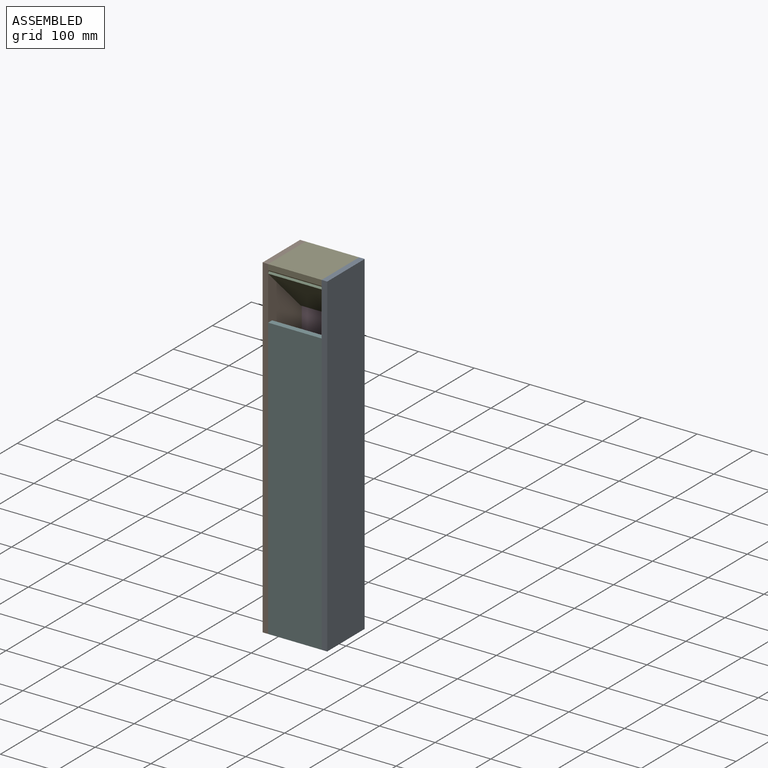
[diagram: assembled view]
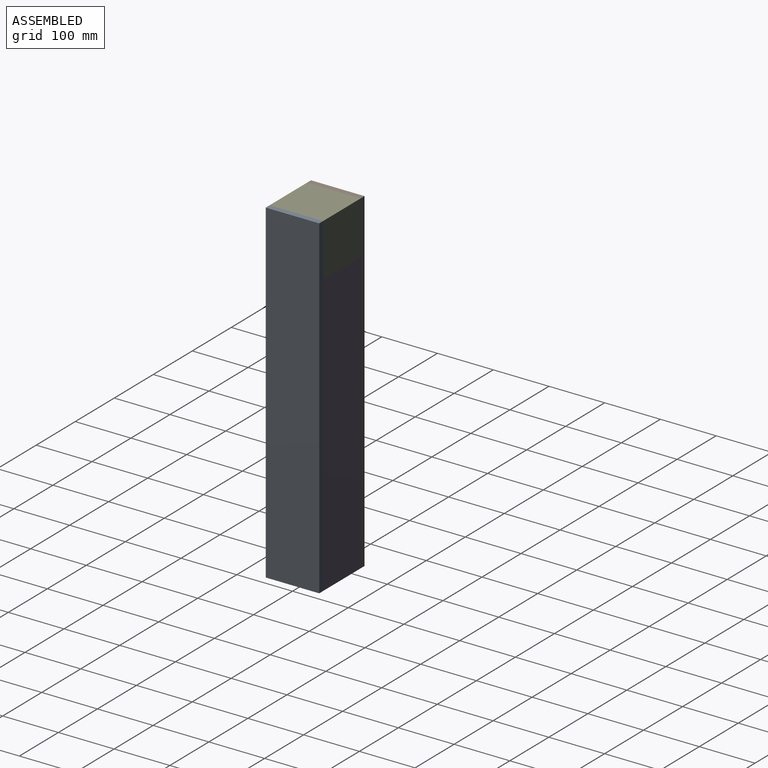
[diagram: assembled view, second angle]
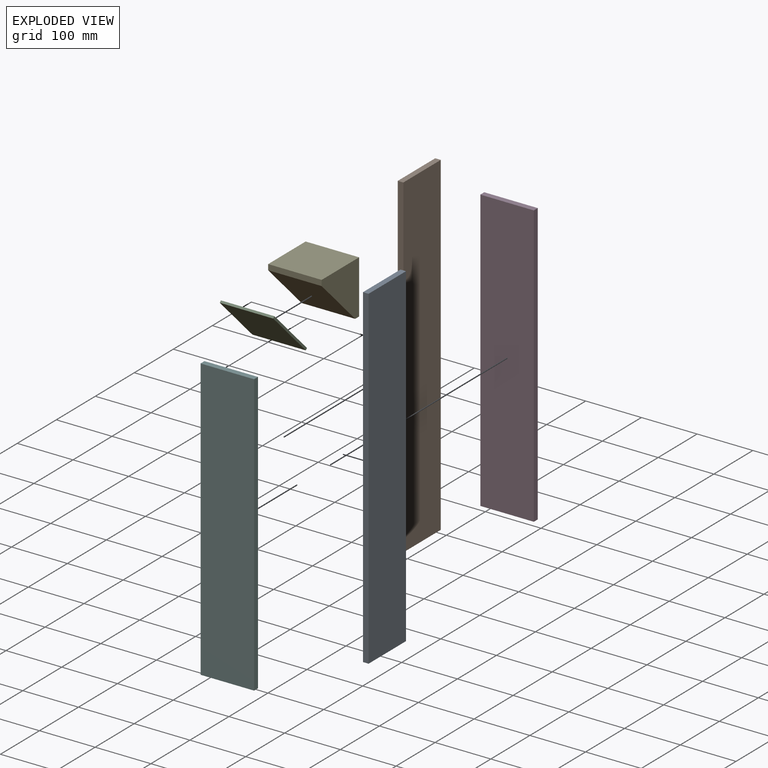
[diagram: exploded view]
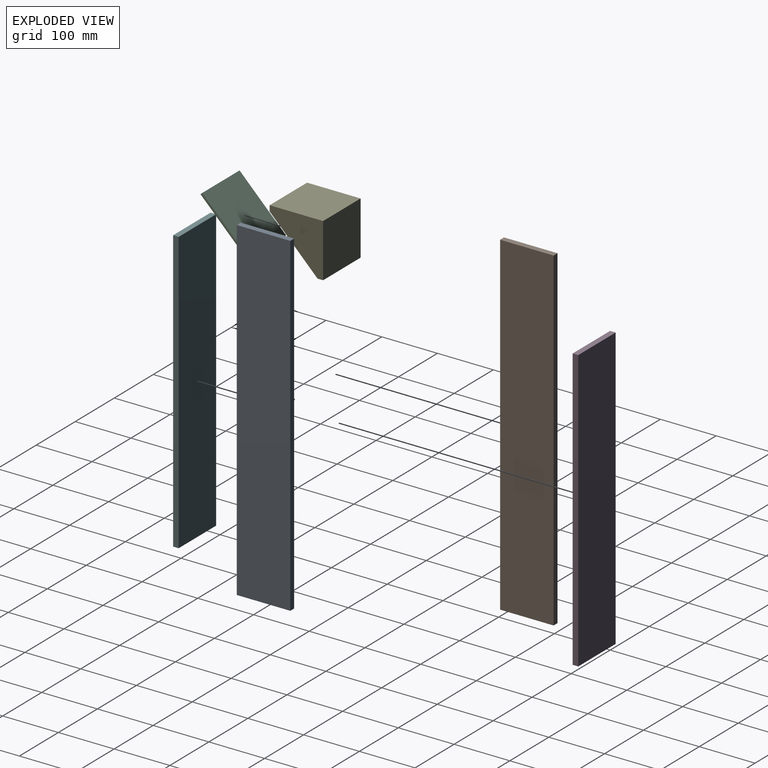
[diagram: exploded view, second angle]
ASSEMBLY  parts=6 mates=5
PART A: 6 faces, bbox 10x96x600 mm
  f0: plane 96x10mm, normal (0,0,1), area 960mm2, adj f1,f3,f4,f5
  f1: plane 600x10mm, normal (0,-1,0), area 6000mm2, adj f0,f2,f4,f5
  f2: plane 96x10mm, normal (0,0,-1), area 960mm2, adj f1,f3,f4,f5
  f3: plane 600x10mm, normal (0,1,0), area 6000mm2, adj f0,f2,f4,f5
  f4: plane 600x96mm, normal (1,0,0), area 57600mm2, adj f0,f1,f2,f3
  f5: plane 600x96mm, normal (-1,0,0), area 57600mm2, adj f0,f1,f2,f3
PART B: same geometry as A
PART C: 6 faces, bbox 96x4x118 mm
  f0: plane 118x4mm, normal (1,0,0), area 472mm2, adj f1,f3,f4,f5
  f1: plane 96x4mm, normal (0,0,1), area 384mm2, adj f0,f2,f4,f5
  f2: plane 118x4mm, normal (-1,0,0), area 472mm2, adj f1,f3,f4,f5
  f3: plane 96x4mm, normal (0,0,-1), area 384mm2, adj f0,f2,f4,f5
  f4: plane 118x96mm, normal (0,-1,0), area 11328mm2, adj f0,f1,f2,f3
  f5: plane 118x96mm, normal (0,1,0), area 11328mm2, adj f0,f1,f2,f3
PART D: 6 faces, bbox 10x96x505 mm
  f0: plane 96x10mm, normal (0,0,1), area 960mm2, adj f1,f3,f4,f5
  f1: plane 505x10mm, normal (0,-1,0), area 5050mm2, adj f0,f2,f4,f5
  f2: plane 96x10mm, normal (0,0,-1), area 960mm2, adj f1,f3,f4,f5
  f3: plane 505x10mm, normal (0,1,0), area 5050mm2, adj f0,f2,f4,f5
  f4: plane 505x96mm, normal (1,0,0), area 48480mm2, adj f0,f1,f2,f3
  f5: plane 505x96mm, normal (-1,0,0), area 48480mm2, adj f0,f1,f2,f3
PART E: 7 faces, bbox 96x96x96 mm
  f0: plane 96x96mm, normal (0,1,0), area 9216mm2, adj f1,f4,f5,f6
  f1: plane 96x96mm, normal (0,0,1), area 9216mm2, adj f0,f2,f5,f6
  f2: plane 96x10mm, normal (0,-1,0), area 960mm2, adj f1,f3,f5,f6
  f3: plane 96x86mm, normal (0,-0.71,-0.71), area 11675.7mm2, adj f2,f4,f5,f6
  f4: plane 96x10mm, normal (0,0,-1), area 960mm2, adj f0,f3,f5,f6
  f5: plane 96x96mm, normal (1,0,0), area 5518mm2, adj f0,f1,f2,f3,f4
  f6: plane 96x96mm, normal (-1,0,0), area 5518mm2, adj f0,f1,f2,f3,f4
PART F: same geometry as D
PLACE A t=(-5,0,0)mm
PLACE B t=(-111,0,0)mm
PLACE C rot(axis=(1,0,0),45deg) t=(-58,-3.72,245.72)mm
PLACE D rot(axis=(0,0,-1),90deg) t=(-58,43,-47.5)mm
PLACE E t=(-58,48,300)mm
PLACE F rot(axis=(0,0,-1),90deg) t=(-58,-43,-47.5)mm
MATE fastened F.f4 <-> A.f1  axis (0,-1,0) through (-10,-48,-300)mm
MATE fastened B.f1 <-> F.f4  axis (0,-1,0) through (-106,-48,-300)mm
MATE fastened E.f5 <-> A.f5  axis (1,0,0) through (-10,48,300)mm
MATE fastened D.f5 <-> B.f3  axis (0,1,0) through (-106,48,-300)mm
MATE fastened E.f3 <-> C.f5  axis (0,-0.71,-0.71) through (-106,38,204)mm
